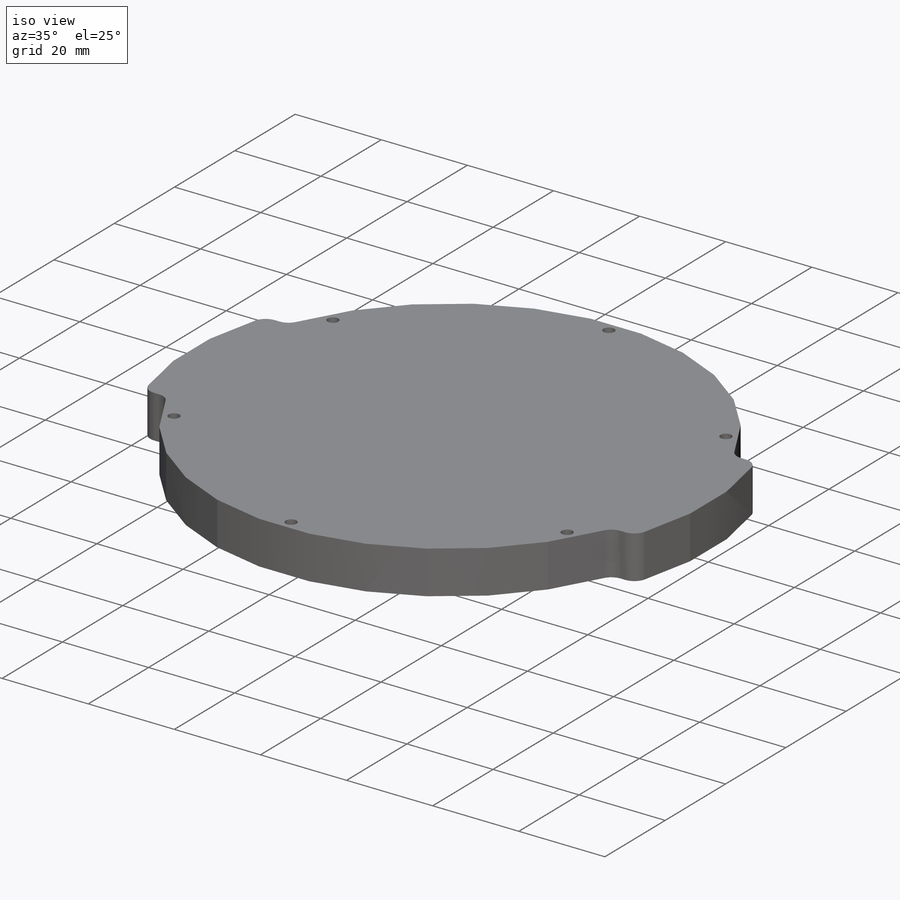
[diagram: iso view]
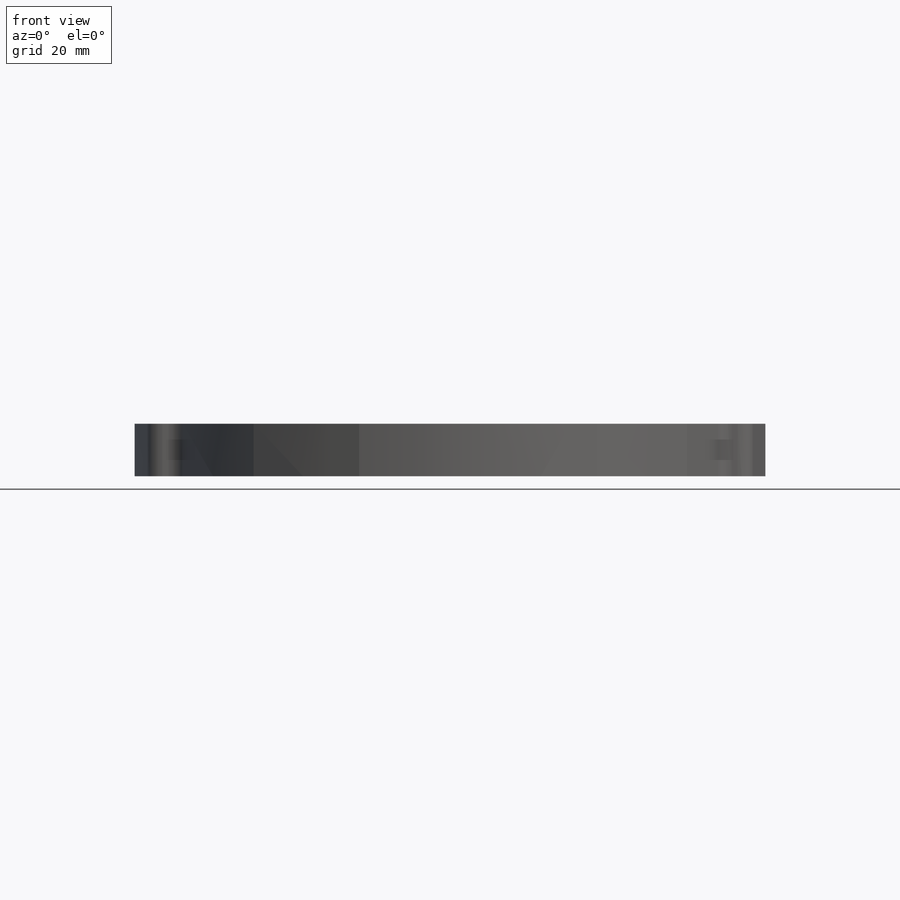
[diagram: front view]
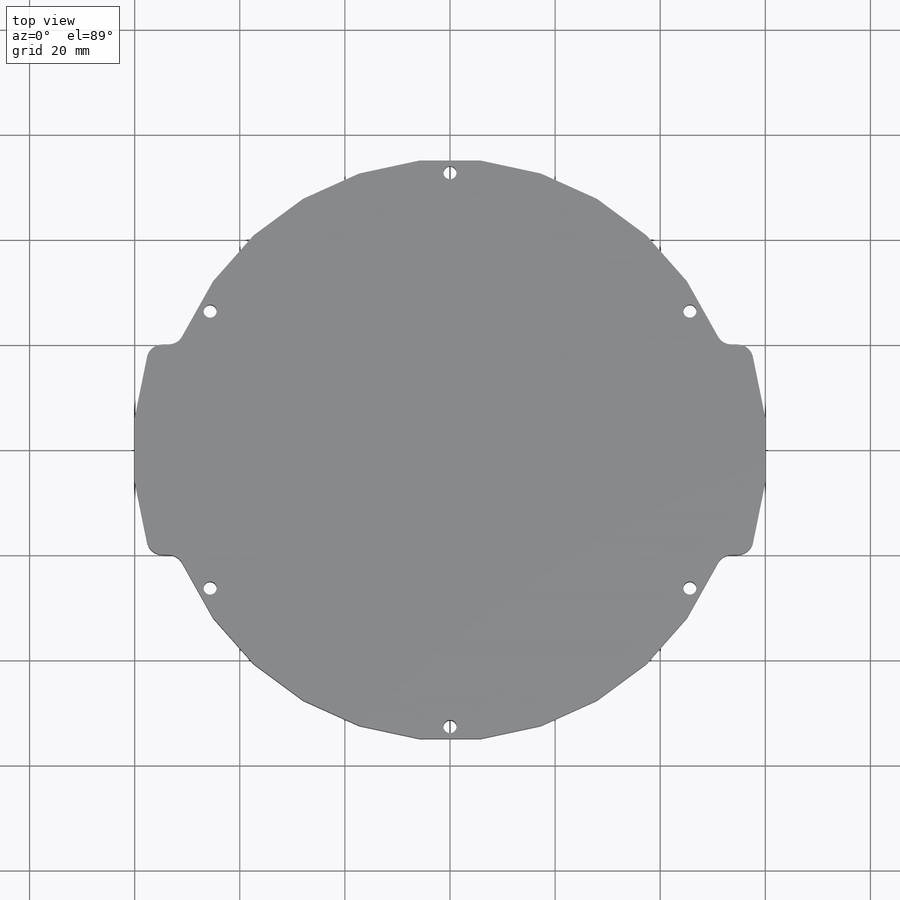
[diagram: top view]
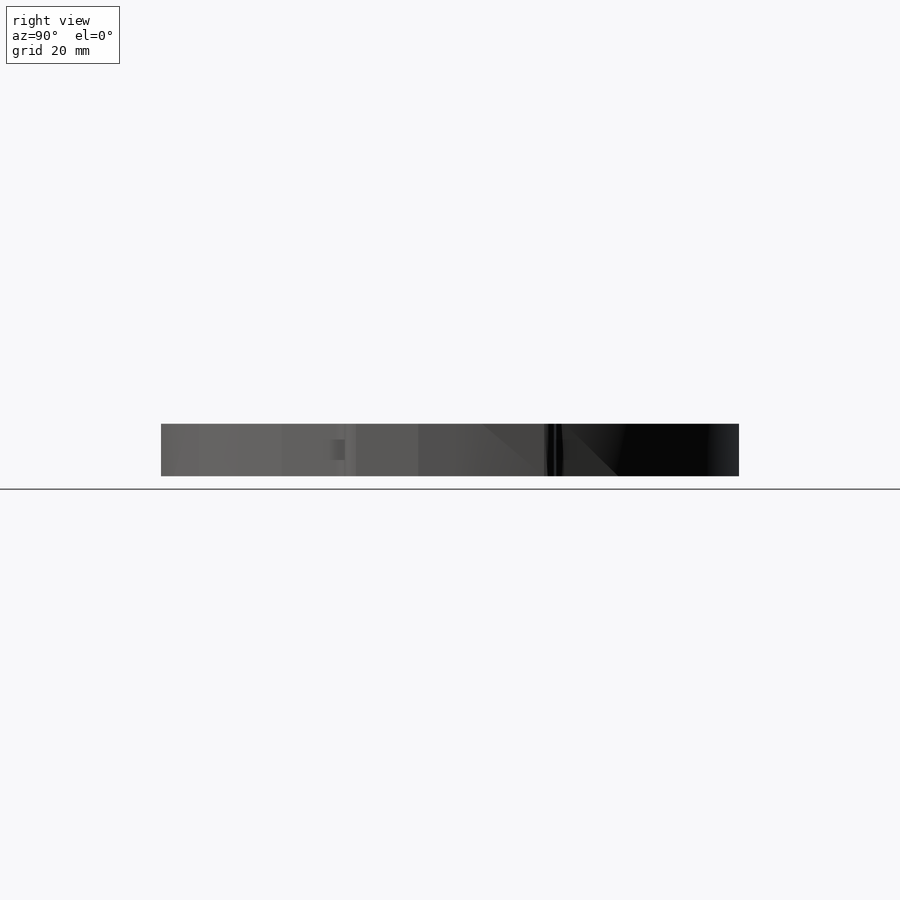
[diagram: right view]
SOLIDWORKS PART (.sldprt)
format: sldprt  version: not decoded by parser v0  size: 211,968 bytes
history: native  units: mm
features: plane x3, sketch x3, cut_extrude x2, material x1, extrude x1, fillet x1 (+10 scaffold rows collapsed)
feature tree (21):
  scaffold x10  (default folders/planes/origin — collapsed)
  material  "材质 <未指定>"
  plane  "前视"
  plane  "上视"
  plane  "右视"
  sketch  "草图3"  dims[D1=~73.666587mm]
  extrude  "凸台-拉伸2"  Depth=10mm
  sketch  "草图4"  dims[c1.D3=~56.330947mm c1.D1=20.0mm c1.D2=20.0mm c2.D3=55.3mm c3.D3=~42.404804deg]
  cut_extrude  "切除-拉伸2"  [1 undecoded]
  fillet  "圆角1"  Radius=3mm
  sketch  "草图5"  dims[D2=2.5mm D1=2.6mm D3=6.0]
  cut_extrude  "切除-拉伸3"  [1 undecoded]
decode coverage: 5 of 7 modeling features carry decoded parameters
note: ~ marks probable driven/reference dimensions
note: 2 parameter values undecoded
note: suppression state not decoded; provenance and decode notes live in map.json
